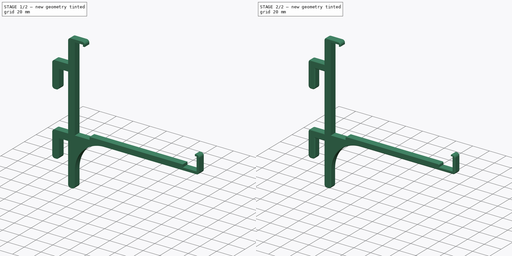
[diagram: build sequence overview — one tinted view per stage of 2, left to right]
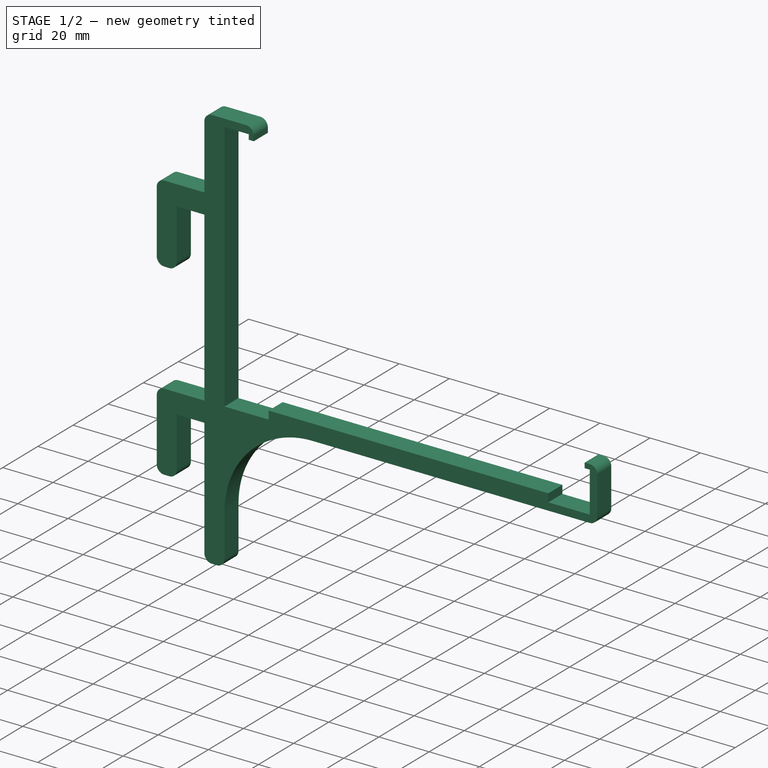
[diagram: stage 1 of 2 — iso view after this stage's code; geometry added in this stage tinted green]
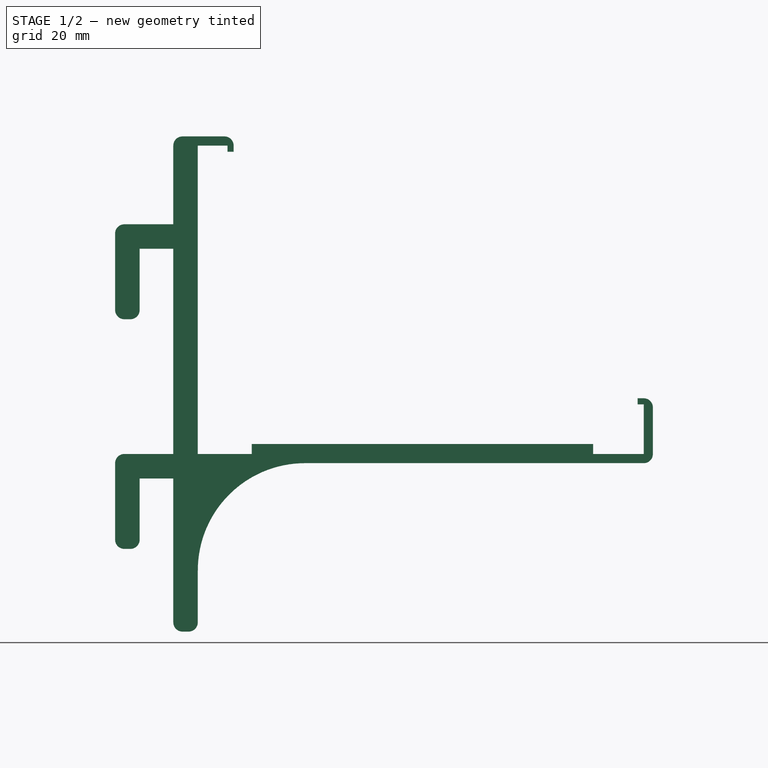
[diagram: stage 1 of 2 — front view after this stage's code; geometry added in this stage tinted green]
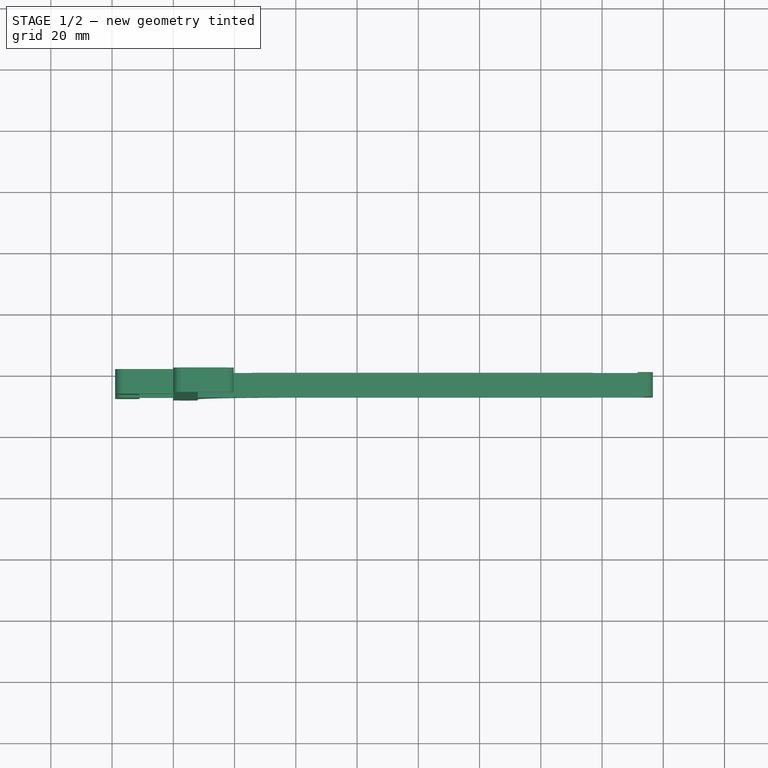
[diagram: stage 1 of 2 — top view after this stage's code; geometry added in this stage tinted green]
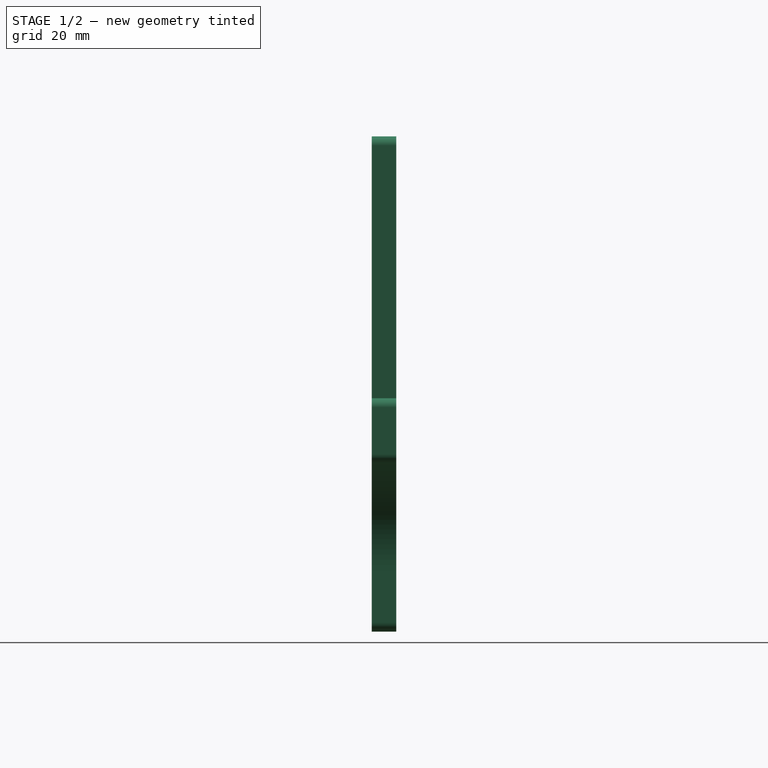
[diagram: stage 1 of 2 — right view after this stage's code; geometry added in this stage tinted green]
FCSTD DOCUMENT  (FreeCAD 0.21R33668 +7 (Git))
Label: LegoDioramaBracket
License: All rights reserved
LicenseURL: http://en.wikipedia.org/wiki/All_rights_reserved
objects: PartDesign::Fillet×2, Sketcher::SketchObject×1, PartDesign::Pad×1, PartDesign::Body×1
note: 8 computed .brp shape members not serialized (recipe doc carries the construction recipe); baked Part::Feature solids carry a one-line shape summary decoded from their .brp

FEATURE [Sketcher::SketchObject] Sketch
  FullyConstrained = true
  MapMode = 5
  Placement = pos=(0,0,0) rot=(1,0,0;1.5708rad)
  Support = -> [XZ_Plane]
  sketch-geometry (33):
    g0: LineSegment StartX=-11 StartY=0 StartZ=0 EndX=-11 EndY=-23 EndZ=0
    g1: LineSegment StartX=-11 StartY=-23 StartZ=0 EndX=-19 EndY=-23 EndZ=0
    g2: LineSegment StartX=19.7 StartY=111.7 StartZ=0 EndX=19.7 EndY=106.7 EndZ=0
    g3: LineSegment StartX=19.7 StartY=106.7 StartZ=0 EndX=17.7 EndY=106.7 EndZ=0
    g4: LineSegment StartX=17.7 StartY=106.7 StartZ=0 EndX=17.7 EndY=108.7 EndZ=0
    g5: LineSegment StartX=17.7 StartY=108.7 StartZ=0 EndX=8 EndY=108.7 EndZ=0
    g6: LineSegment StartX=8 StartY=108.7 StartZ=0 EndX=8 EndY=8 EndZ=0
    g7: LineSegment StartX=8 StartY=8 StartZ=0 EndX=25.6 EndY=8 EndZ=0
    g8: LineSegment StartX=25.6 StartY=8 StartZ=0 EndX=25.6 EndY=11.25 EndZ=0
    g9: LineSegment StartX=25.6 StartY=11.25 StartZ=0 EndX=137.1 EndY=11.25 EndZ=0
    g10: LineSegment StartX=137.1 StartY=11.25 StartZ=0 EndX=137.1 EndY=8 EndZ=0
    g11: LineSegment StartX=137.1 StartY=8 StartZ=0 EndX=153.6 EndY=8 EndZ=0
    g12: LineSegment StartX=153.6 StartY=8 StartZ=0 EndX=153.6 EndY=24.2 EndZ=0
    g13: LineSegment StartX=153.6 StartY=24.2 StartZ=0 EndX=151.6 EndY=24.2 EndZ=0
    g14: LineSegment StartX=151.6 StartY=24.2 StartZ=0 EndX=151.6 EndY=26.2 EndZ=0
    g15: LineSegment StartX=151.6 StartY=26.2 StartZ=0 EndX=156.6 EndY=26.2 EndZ=0
    g16: LineSegment StartX=156.6 StartY=26.2 StartZ=0 EndX=156.6 EndY=5 EndZ=0
    g17: LineSegment StartX=156.6 StartY=5 StartZ=0 EndX=43 EndY=5 EndZ=0
    g18: LineSegment StartX=8 StartY=-30 StartZ=0 EndX=8 EndY=-50 EndZ=0
    g19: LineSegment StartX=8 StartY=-50 StartZ=0 EndX=0 EndY=-50 EndZ=0
    g20: LineSegment StartX=0 StartY=-50 StartZ=0 EndX=0 EndY=0 EndZ=0
    g21: LineSegment StartX=0 StartY=0 StartZ=0 EndX=-11 EndY=0 EndZ=0
    g22: ArcOfCircle CenterX=43 CenterY=-30 CenterZ=0 NormalX=0 NormalY=0 NormalZ=1 AngleXU=0 Radius=35 StartAngle=1.5708 EndAngle=3.14159
    g23: LineSegment StartX=-19 StartY=-23 StartZ=0 EndX=-19 EndY=8 EndZ=0
    g24: LineSegment StartX=-19 StartY=8 StartZ=0 EndX=0 EndY=8 EndZ=0
    g25: LineSegment StartX=0 StartY=8 StartZ=0 EndX=0 EndY=75 EndZ=0
    g26: LineSegment StartX=-19 StartY=83 StartZ=0 EndX=0 EndY=83 EndZ=0
    g27: LineSegment StartX=-19 StartY=52 StartZ=0 EndX=-19 EndY=83 EndZ=0
    g28: LineSegment StartX=-11 StartY=52 StartZ=0 EndX=-19 EndY=52 EndZ=0
    g29: LineSegment StartX=0 StartY=75 StartZ=0 EndX=-11 EndY=75 EndZ=0
    g30: LineSegment StartX=-11 StartY=75 StartZ=0 EndX=-11 EndY=52 EndZ=0
    g31: LineSegment StartX=0 StartY=83 StartZ=0 EndX=0 EndY=111.7 EndZ=0
    g32: LineSegment StartX=0 StartY=111.7 StartZ=0 EndX=19.7 EndY=111.7 EndZ=0
  constraints (99):
    c: Coincident(g0,g1)
    c: Horizontal(g1)
    c: Coincident(g1,g23)
    c: Coincident(g26,g31)
    c: Coincident(g32,g2)
    c: Vertical(g2)
    c: Coincident(g2,g3)
    c: Horizontal(g3)
    c: Coincident(g3,g4)
    c: Vertical(g4)
    c: Coincident(g4,g5)
    c: Horizontal(g5)
    c: Coincident(g5,g6)
    c: Vertical(g6)
    c: Coincident(g6,g7)
    c: Horizontal(g7)
    c: Coincident(g7,g8)
    c: Vertical(g8)
    c: Coincident(g8,g9)
    c: Horizontal(g9)
    c: Coincident(g9,g10)
    c: Vertical(g10)
    c: Coincident(g10,g11)
    c: Horizontal(g11)
    c: Coincident(g11,g12)
    c: Vertical(g12)
    c: Coincident(g12,g13)
    c: Horizontal(g13)
    c: Coincident(g13,g14)
    c: Vertical(g14)
    c: Coincident(g14,g15)
    c: Horizontal(g15)
    c: Coincident(g15,g16)
    c: Vertical(g16)
    c: Coincident(g16,g17)
    c: Horizontal(g17)
    c: Vertical(g18)
    c: Coincident(g18,g19)
    c: Horizontal(g19)
    c: Coincident(g19,g20)
    c: Vertical(g20)
    c: Coincident(g20,g21)
    c: Coincident(g21,g0)
    c: Vertical(g17,g22)
    c: Horizontal(g18,g22)
    c: DistanceX(g21,g21) = 11
    c: Coincident(g22,g18)
    c: Coincident(g22,g17)
    c: DistanceY(g20,g20) = 50
    c: DistanceX(g19,g19) = 8
    c: DistanceX(g1,g1) = 8
    c: DistanceY(g0,g0) = 23
    c: DistanceY(g0,g6) = 8
    c: DistanceX(g5,g5) = 9.7
    c: DistanceY(g4,g4) = 2
    c: DistanceX(g3,g3) = 2
    c: DistanceY(g4,g32) = 3
    c: DistanceY(g8,g8) = 3.25
    c: DistanceX(g7,g7) = 17.6
    c: Equal(g8,g10)
    c: DistanceX(g9,g9) = 111.5
    c: DistanceX(g11,g11) = 16.5
    c: DistanceX(g11,g15) = 3
    c: DistanceY(g14,g14) = 2
    c: DistanceX(g13,g13) = 2
    c: DistanceY(g12,g12) = 16.2
    c: DistanceY(g16,g11) = 3
    c: Radius(g22) = 35
    c: DistanceY(g6,g6) = 100.7
    c: Coincident(g23,g24)
    c: Vertical(g23)
    c: Coincident(g24,g25)
    c: Vertical(g0)
    c: Horizontal(g21)
    c: Horizontal(g24)
    c: Horizontal(g24,g6)
    c: Coincident(g-1,g20)
    c: Vertical(g6,g18)
    c: Coincident(g25,g29)
    c: Vertical(g25)
    c: Coincident(g27,g26)
    c: Coincident(g28,g27)
    c: Vertical(g31,g19)
    c: Vertical(g25,g31)
    c: Horizontal(g26)
    c: Vertical(g27)
    c: Coincident(g30,g28)
    c: Coincident(g29,g30)
    c: DistanceY(g25,g31) = 8
    c: Horizontal(g29)
    c: Vertical(g30)
    c: Horizontal(g28)
    c: DistanceX(g27,g28) = 8
    c: DistanceY(g28,g29) = 23
    c: DistanceX(g29,g25) = 11
    c: Coincident(g31,g32)
    c: Horizontal(g32)
    c: Vertical(g31)
    c: DistanceY(g24,g26) = 75
FEATURE [PartDesign::Pad] Pad
  Direction = (0,-1,2e-16)
  Length = 8
  Length2 = 10
  Placement = pos=(0,0,0) rot=(1,0,0;1.5708rad)
  Profile = -> Sketch
  ReferenceAxis = -> Sketch [N_Axis]
  Refine = true
  Type = 0
FEATURE [PartDesign::Fillet] Fillet
  Base = -> Pad [Edge23,Edge26,Edge32,Edge35,Edge77,Edge92,Edge5,Edge8,Edge89,Edge2,Edge20,Edge80]
  BaseFeature = -> Pad
  Placement = pos=(0,0,0) rot=(1,0,0;1.5708rad)
  Radius = 3
  SupportTransform = false
  UseAllEdges = false
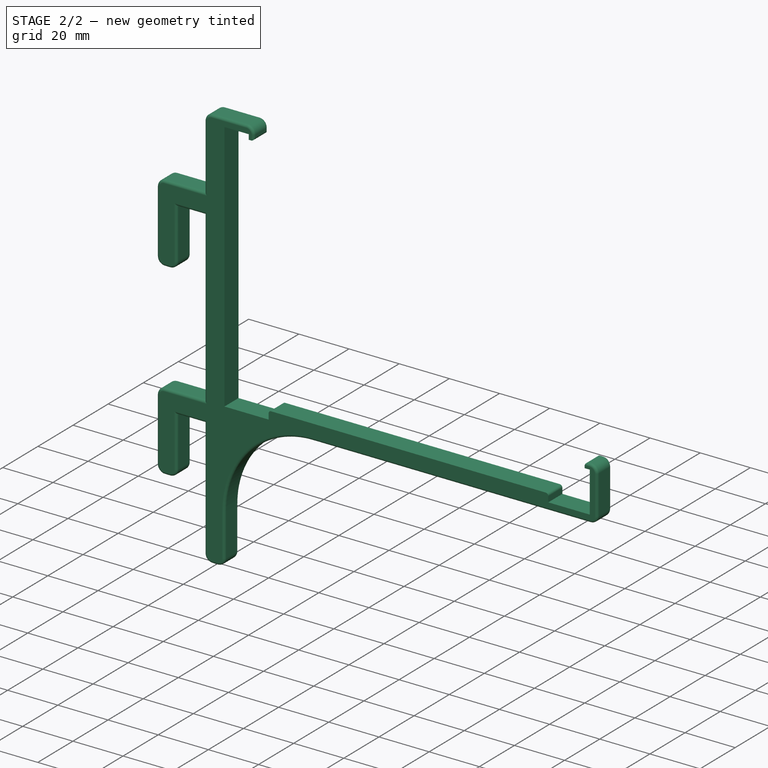
[diagram: stage 2 of 2 — iso view after this stage's code; geometry added in this stage tinted green]
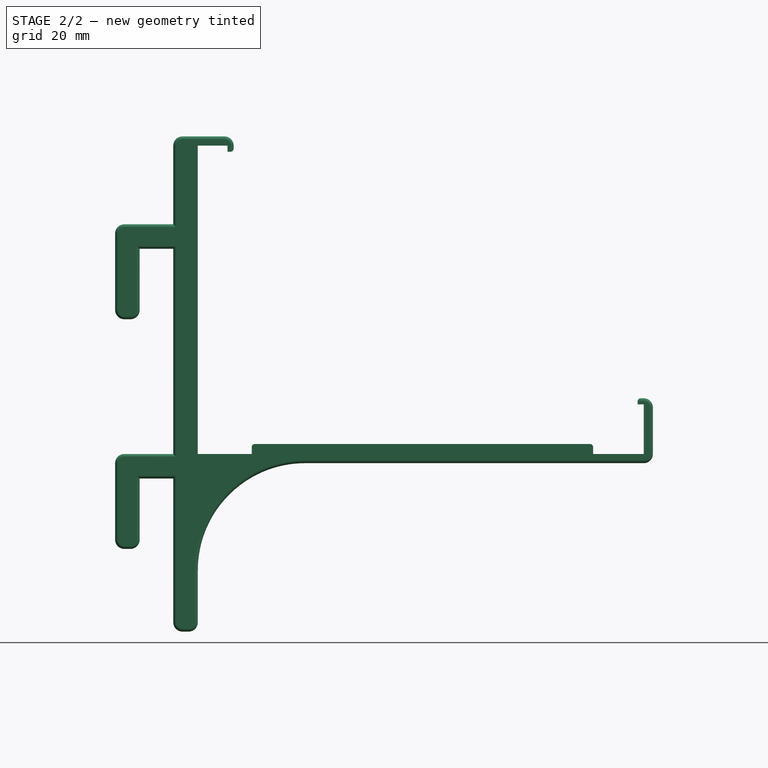
[diagram: stage 2 of 2 — front view after this stage's code; geometry added in this stage tinted green]
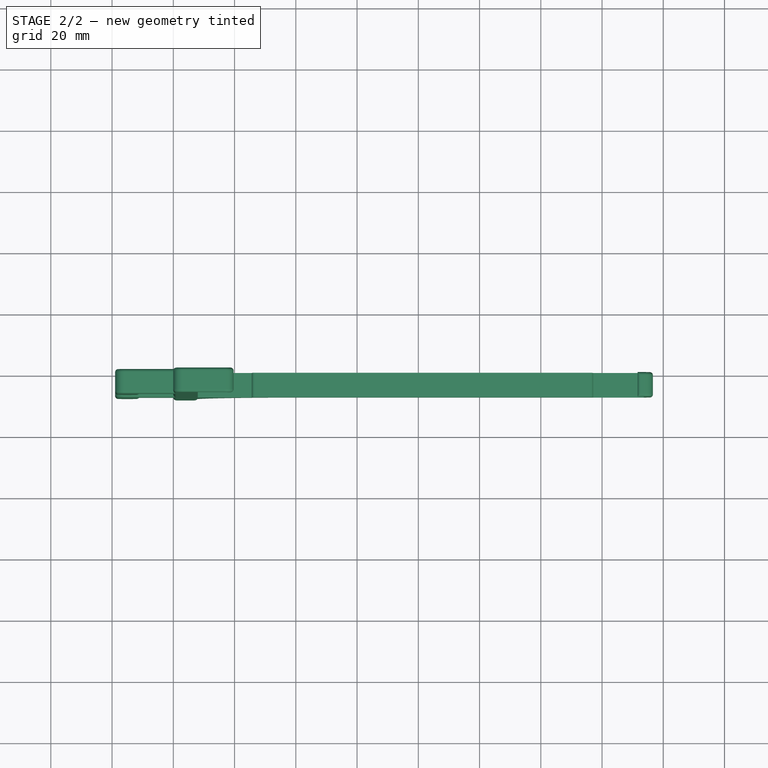
[diagram: stage 2 of 2 — top view after this stage's code; geometry added in this stage tinted green]
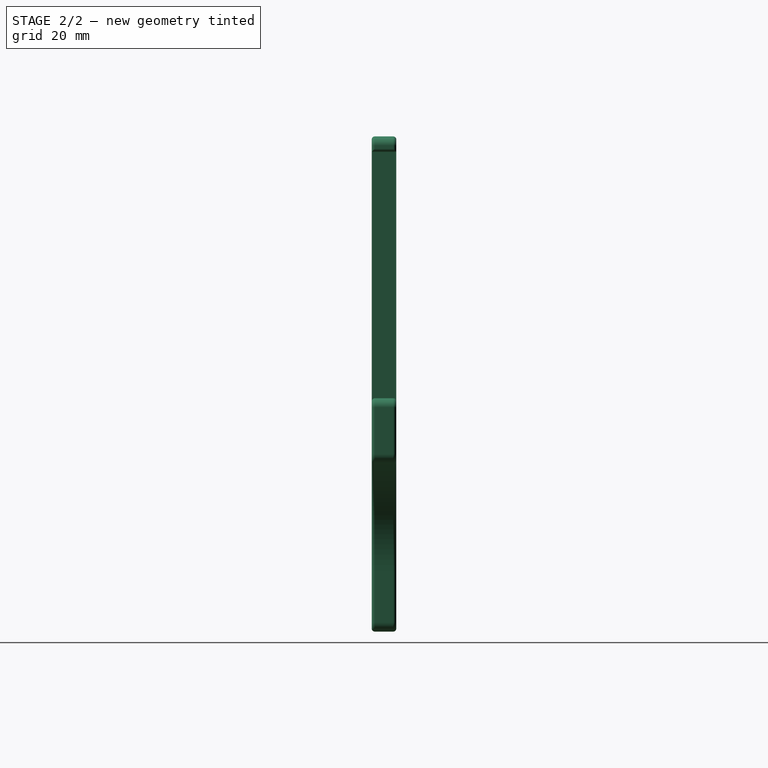
[diagram: stage 2 of 2 — right view after this stage's code; geometry added in this stage tinted green]
FEATURE [PartDesign::Fillet] Fillet001
  Base = -> Fillet [Edge64,Edge18,Edge126,Edge128,Edge116,Edge131,Edge5,Edge50,Edge23,Edge69,Edge6,Edge52,Edge19,Edge65,Edge37,Edge17,Edge83,Edge63]
  BaseFeature = -> Fillet
  Placement = pos=(0,0,0) rot=(1,0,0;1.5708rad)
  Radius = 1
  SupportTransform = false
  UseAllEdges = false
FEATURE [PartDesign::Body] Body
  Group = -> [Sketch,Pad,Fillet,Fillet001]
  Origin = -> Origin
  Tip = -> Fillet001
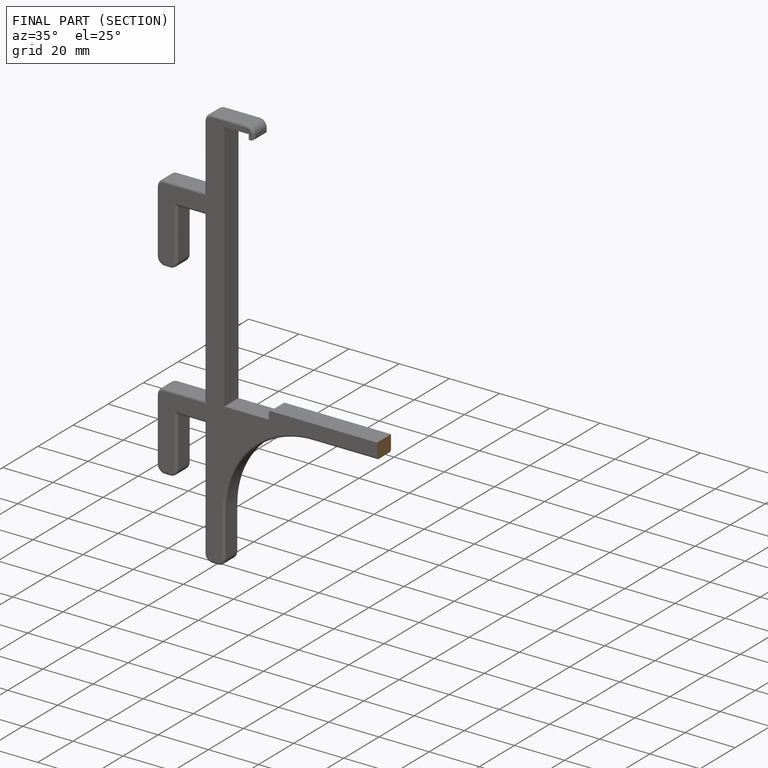
[diagram: finished part — half-section view (interior)]
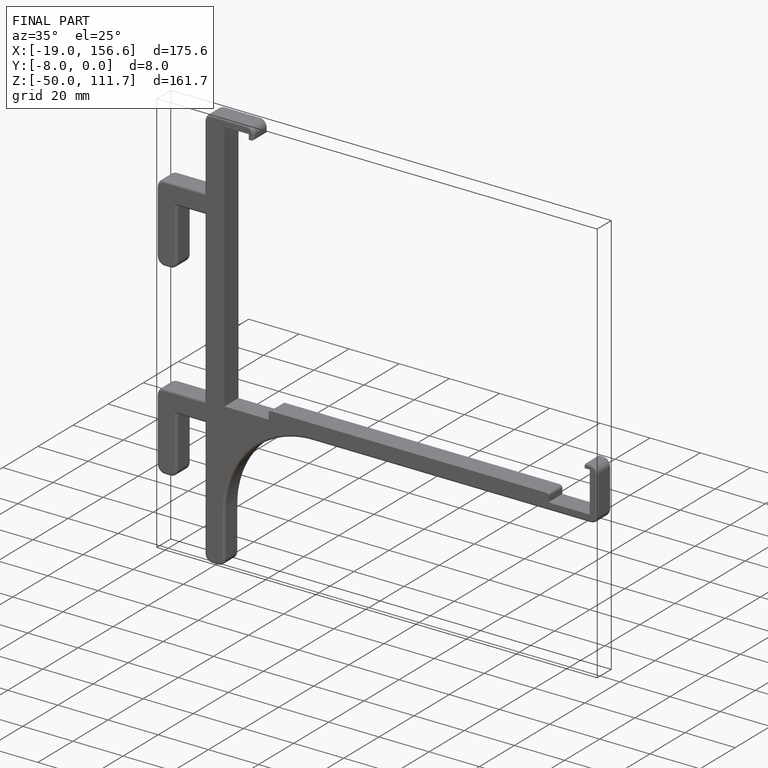
[diagram: finished part — iso view with bounding-box wireframe]
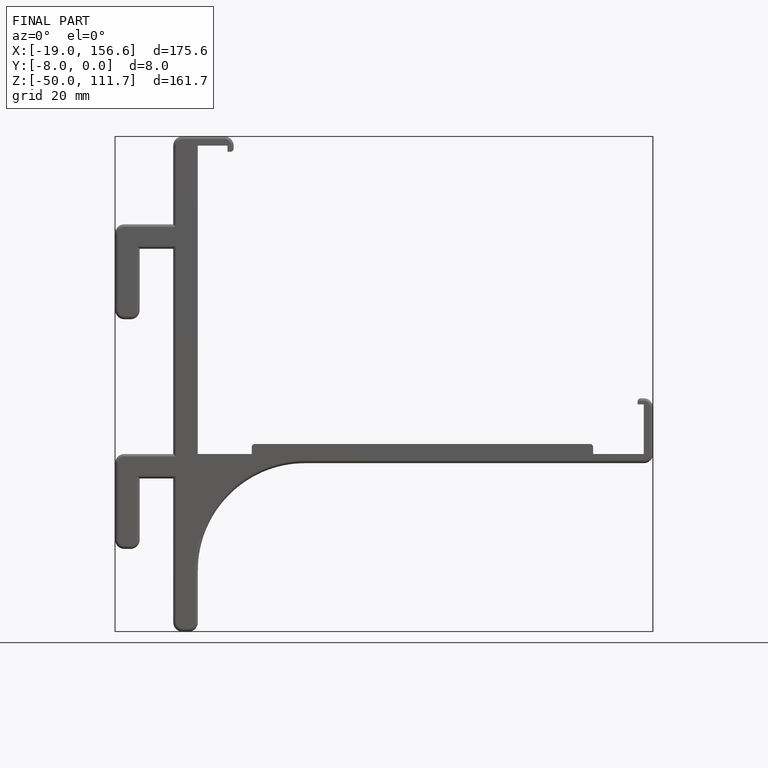
[diagram: finished part — front view with bounding-box wireframe]
